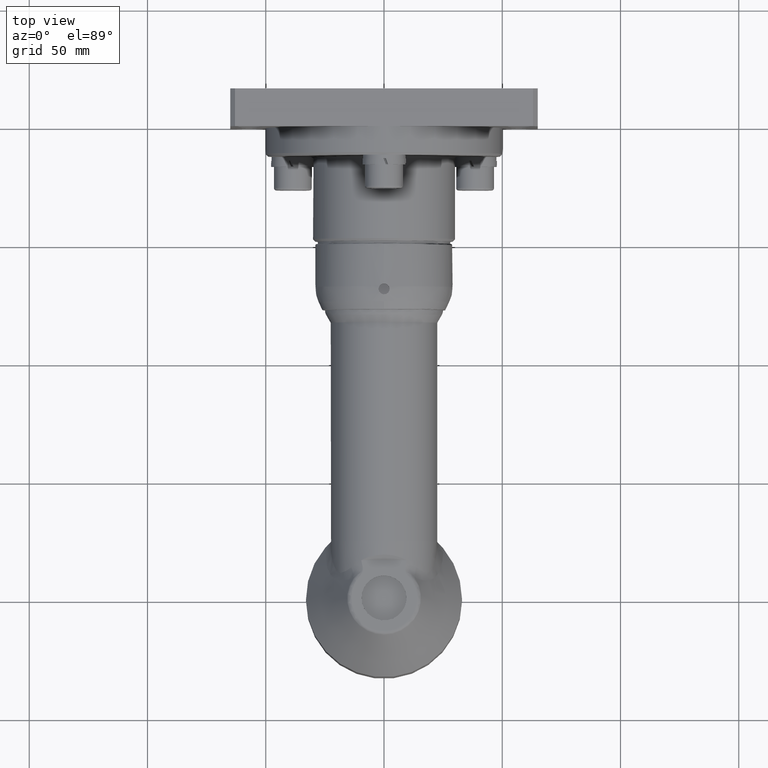
[diagram: clean part render]
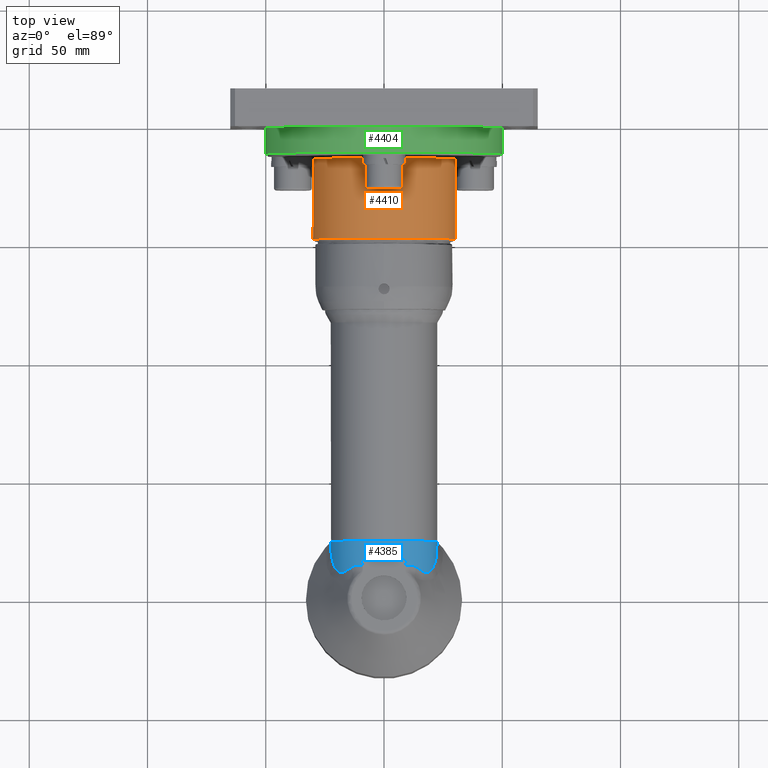
[diagram: same view with three faces highlighted in distinct colors, each labeled with its STEP entity id]
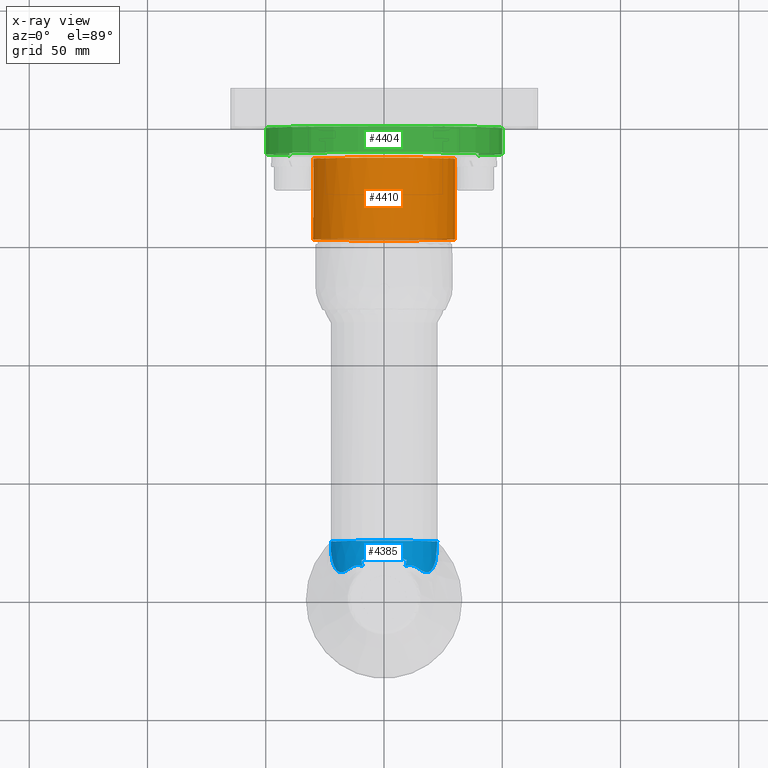
[diagram: x-ray of the same camera — body ghosted, the three highlighted faces saturated]
A machine part, top view with three faces highlighted in distinct colors.
The next image is the same camera in x-ray (body ghosted, the three faces saturated) — at least one of them is partly hidden behind the body in this view.
Their STEP definitions:

[orange] entity #4410 — the highlighted cylindrical surface (bore or boss wall) has radius 30 mm, axis along (-0, 1, -0).
#221=LINE('',#8196,#440);
#440=VECTOR('',#5733,30.);
#630=CYLINDRICAL_SURFACE('',#4825,30.);
#819=FACE_OUTER_BOUND('',#1087,.T.);
#1087=EDGE_LOOP('',(#3302,#3303,#3304,#3305,#3306,#3307,#3308));
#1298=CIRCLE('',#4613,30.);
#1299=CIRCLE('',#4614,30.);
#1429=CIRCLE('',#4810,30.);
#1430=CIRCLE('',#4811,30.);
#1442=CIRCLE('',#4826,30.);
#1668=VERTEX_POINT('',#6719);
#1670=VERTEX_POINT('',#6722);
#1671=VERTEX_POINT('',#6724);
#1847=VERTEX_POINT('',#8163);
#1848=VERTEX_POINT('',#8164);
#2138=EDGE_CURVE('',#1668,#1670,#1298,.T.);
#2139=EDGE_CURVE('',#1670,#1671,#1299,.T.);
#2378=EDGE_CURVE('',#1847,#1848,#1429,.T.);
#2379=EDGE_CURVE('',#1848,#1847,#1430,.T.);
#2394=EDGE_CURVE('',#1671,#1668,#1442,.T.);
#2395=EDGE_CURVE('',#1670,#1848,#221,.T.);
#3302=ORIENTED_EDGE('',*,*,#2394,.F.);
#3303=ORIENTED_EDGE('',*,*,#2139,.F.);
#3304=ORIENTED_EDGE('',*,*,#2395,.T.);
#3305=ORIENTED_EDGE('',*,*,#2378,.F.);
#3306=ORIENTED_EDGE('',*,*,#2379,.F.);
#3307=ORIENTED_EDGE('',*,*,#2395,.F.);
#3308=ORIENTED_EDGE('',*,*,#2138,.F.);
#4410=ADVANCED_FACE('',(#819),#630,.T.);
#4613=AXIS2_PLACEMENT_3D('',#6723,#5253,#5254);
#4614=AXIS2_PLACEMENT_3D('',#6725,#5255,#5256);
#4810=AXIS2_PLACEMENT_3D('',#8165,#5696,#5697);
#4811=AXIS2_PLACEMENT_3D('',#8166,#5698,#5699);
#4825=AXIS2_PLACEMENT_3D('',#8194,#5729,#5730);
#4826=AXIS2_PLACEMENT_3D('',#8195,#5731,#5732);
#5253=DIRECTION('center_axis',(-3.26160557569231E-16,1.,-1.88737914186277E-15));
#5254=DIRECTION('ref_axis',(1.,3.26821404607699E-16,3.57169367469784E-16));
#5255=DIRECTION('center_axis',(-3.26160557569231E-16,1.,-1.88737914186277E-15));
#5256=DIRECTION('ref_axis',(1.,3.26821404607699E-16,3.57169367469784E-16));
#5696=DIRECTION('center_axis',(3.26160557569231E-16,-1.,1.88737914186277E-15));
#5697=DIRECTION('ref_axis',(1.,2.20425031414454E-16,1.73472347597681E-16));
#5698=DIRECTION('center_axis',(3.26160557569231E-16,-1.,1.88737914186277E-15));
#5699=DIRECTION('ref_axis',(1.,2.20425031414454E-16,1.73472347597681E-16));
#5729=DIRECTION('center_axis',(-3.26160557569231E-16,1.,-1.88737914186277E-15));
#5730=DIRECTION('ref_axis',(-1.,-2.20425031414454E-16,-1.73472347597681E-16));
#5731=DIRECTION('center_axis',(-3.26160557569231E-16,1.,-1.88737914186277E-15));
#5732=DIRECTION('ref_axis',(1.,3.26821404607699E-16,3.57169367469784E-16));
#5733=DIRECTION('',(3.26160557569231E-16,-1.,1.88737914186277E-15));
#6719=CARTESIAN_POINT('',(-2.11628509664528E-14,185.999999999999,29.9999999999996));
#6722=CARTESIAN_POINT('',(30.,185.999999999999,-3.49522290355986E-13));
#6723=CARTESIAN_POINT('Origin',(-1.96326209359644E-14,185.999999999999,
-3.51052520386475E-13));
#6724=CARTESIAN_POINT('',(-1.77591195819094E-14,185.999999999999,-30.0000000000004));
#6725=CARTESIAN_POINT('Origin',(-1.96326209359644E-14,185.999999999999,
-3.51052520386475E-13));
#8163=CARTESIAN_POINT('',(-30.,151.999999999999,-2.95759740388513E-13));
#8164=CARTESIAN_POINT('',(30.,151.999999999999,-2.85351399532652E-13));
#8165=CARTESIAN_POINT('Origin',(-8.54316197861053E-15,151.999999999999,
-2.8688162956314E-13));
#8166=CARTESIAN_POINT('Origin',(-8.54316197861053E-15,151.999999999999,
-2.8688162956314E-13));
#8194=CARTESIAN_POINT('Origin',(-1.40878914572875E-14,168.999999999999,
-3.18967074974807E-13));
#8195=CARTESIAN_POINT('Origin',(-1.96326209359644E-14,185.999999999999,
-3.51052520386475E-13));
#8196=CARTESIAN_POINT('',(30.,168.999999999999,-3.17436844944319E-13));

[blue] entity #4385 — the highlighted face is a freeform B-spline surface patch.
#34=(
BOUNDED_SURFACE()
B_SPLINE_SURFACE(2,2,((#7786,#7787,#7788,#7789,#7790,#7791,#7792),(#7793,
#7794,#7795,#7796,#7797,#7798,#7799),(#7800,#7801,#7802,#7803,#7804,#7805,
#7806)),.UNSPECIFIED.,.F.,.F.,.F.)
B_SPLINE_SURFACE_WITH_KNOTS((3,3),(3,2,2,3),(-0.121507903719322,8.42293330282483E-14),
(-1.67354673146494,-0.557848910488315,0.557848910488315,1.67354673146494),
 .UNSPECIFIED.)
GEOMETRIC_REPRESENTATION_ITEM()
RATIONAL_B_SPLINE_SURFACE(((1.,0.848395778988548,1.,0.848395778988548,1.,
0.848395778988548,1.),(0.998155046254917,0.846830528018791,0.998155046254917,
0.846830528018791,0.998155046254917,0.846830528018791,0.998155046254917),
(1.,0.848395778988548,1.,0.848395778988548,1.,0.848395778988548,1.)))
REPRESENTATION_ITEM('')
SURFACE()
);
#98=B_SPLINE_CURVE_WITH_KNOTS('',3,(#7448,#7449,#7450,#7451),
 .UNSPECIFIED.,.F.,.F.,(4,4),(8.45399824800598,8.6977302003579),
 .UNSPECIFIED.);
#99=B_SPLINE_CURVE_WITH_KNOTS('',3,(#7455,#7456,#7457,#7458),
 .UNSPECIFIED.,.F.,.F.,(4,4),(1.5520568508475,1.79578650565698),
 .UNSPECIFIED.);
#102=B_SPLINE_CURVE_WITH_KNOTS('',3,(#7496,#7497,#7498,#7499,#7500,#7501,
#7502,#7503),.UNSPECIFIED.,.F.,.F.,(4,2,2,4),(5.72492215335399,5.94898760195382,
6.32942034717249,6.70985309239116),.UNSPECIFIED.);
#103=B_SPLINE_CURVE_WITH_KNOTS('',3,(#7504,#7505,#7506,#7507,#7508,#7509,
#7510,#7511),.UNSPECIFIED.,.F.,.F.,(4,2,2,4),(6.70985309239116,7.09028583760984,
7.47071858282851,7.69478403142834),.UNSPECIFIED.);
#110=B_SPLINE_CURVE_WITH_KNOTS('',3,(#7667,#7668,#7669,#7670,#7671),
 .UNSPECIFIED.,.F.,.F.,(4,1,4),(17.7349596598075,18.23788179964,18.5067679808923),
 .UNSPECIFIED.);
#111=B_SPLINE_CURVE_WITH_KNOTS('',3,(#7719,#7720,#7721,#7722,#7723,#7724,
#7725,#7726,#7727),.UNSPECIFIED.,.F.,.F.,(4,1,1,1,1,1,4),(0.,0.503527424554999,
1.510582273665,2.01410969822,2.517637122775,3.02116454733,3.52469197188499),
 .UNSPECIFIED.);
#115=B_SPLINE_CURVE_WITH_KNOTS('',3,(#7809,#7810,#7811,#7812,#7813,#7814,
#7815,#7816,#7817),.UNSPECIFIED.,.F.,.F.,(4,1,1,1,1,1,4),(3.70322134086901E-13,
0.503519479453701,1.00703895890703,1.51055843836036,2.01407791781369,2.51759739726702,
3.52463635617369),.UNSPECIFIED.);
#116=B_SPLINE_CURVE_WITH_KNOTS('',3,(#7818,#7819,#7820,#7821,#7822,#7823),
 .UNSPECIFIED.,.F.,.F.,(4,1,1,4),(11.6132148061005,11.7143579581736,12.0496393855913,
12.3849208130091),.UNSPECIFIED.);
#794=FACE_OUTER_BOUND('',#1054,.T.);
#1054=EDGE_LOOP('',(#3154,#3155,#3156,#3157,#3158,#3159,#3160,#3161,#3162,
#3163));
#1382=CIRCLE('',#4745,22.5);
#1383=CIRCLE('',#4746,22.5);
#1773=VERTEX_POINT('',#7446);
#1774=VERTEX_POINT('',#7447);
#1775=VERTEX_POINT('',#7452);
#1776=VERTEX_POINT('',#7454);
#1783=VERTEX_POINT('',#7495);
#1792=VERTEX_POINT('',#7665);
#1793=VERTEX_POINT('',#7717);
#1796=VERTEX_POINT('',#7807);
#1797=VERTEX_POINT('',#7808);
#1798=VERTEX_POINT('',#7824);
#2278=EDGE_CURVE('',#1773,#1774,#98,.T.);
#2280=EDGE_CURVE('',#1776,#1775,#99,.T.);
#2289=EDGE_CURVE('',#1775,#1783,#102,.T.);
#2290=EDGE_CURVE('',#1783,#1773,#103,.T.);
#2305=EDGE_CURVE('',#1792,#1774,#110,.T.);
#2307=EDGE_CURVE('',#1793,#1792,#111,.T.);
#2311=EDGE_CURVE('',#1796,#1797,#115,.T.);
#2312=EDGE_CURVE('',#1776,#1796,#116,.T.);
#2313=EDGE_CURVE('',#1798,#1793,#1382,.T.);
#2314=EDGE_CURVE('',#1797,#1798,#1383,.T.);
#3154=ORIENTED_EDGE('',*,*,#2311,.F.);
#3155=ORIENTED_EDGE('',*,*,#2312,.F.);
#3156=ORIENTED_EDGE('',*,*,#2280,.T.);
#3157=ORIENTED_EDGE('',*,*,#2289,.T.);
#3158=ORIENTED_EDGE('',*,*,#2290,.T.);
#3159=ORIENTED_EDGE('',*,*,#2278,.T.);
#3160=ORIENTED_EDGE('',*,*,#2305,.F.);
#3161=ORIENTED_EDGE('',*,*,#2307,.F.);
#3162=ORIENTED_EDGE('',*,*,#2313,.F.);
#3163=ORIENTED_EDGE('',*,*,#2314,.F.);
#4385=ADVANCED_FACE('',(#794),#34,.F.);
#4745=AXIS2_PLACEMENT_3D('',#7825,#5554,#5555);
#4746=AXIS2_PLACEMENT_3D('',#7826,#5556,#5557);
#5554=DIRECTION('center_axis',(5.4632067194463E-16,1.,-1.08559870364431E-30));
#5555=DIRECTION('ref_axis',(1.,-5.4632067194463E-16,2.39031970244941E-15));
#5556=DIRECTION('center_axis',(5.4632067194463E-16,1.,-1.08559870364431E-30));
#5557=DIRECTION('ref_axis',(1.,-5.4632067194463E-16,2.39031970244941E-15));
#7446=CARTESIAN_POINT('',(9.6243516360872,16.,20.));
#7447=CARTESIAN_POINT('',(9.09498390080596,13.4198637412832,20.));
#7448=CARTESIAN_POINT('Ctrl Pts',(9.62435163608718,16.,20.));
#7449=CARTESIAN_POINT('Ctrl Pts',(9.47337418851441,15.1269371126269,20.));
#7450=CARTESIAN_POINT('Ctrl Pts',(9.29653345409303,14.262978332378,20.));
#7451=CARTESIAN_POINT('Ctrl Pts',(9.09498390080595,13.4198637412832,20.));
#7452=CARTESIAN_POINT('',(-9.62435163608727,16.,20.));
#7454=CARTESIAN_POINT('',(-9.09498390080603,13.4198637412832,20.));
#7455=CARTESIAN_POINT('Ctrl Pts',(-9.09498390080604,13.4198637412832,20.));
#7456=CARTESIAN_POINT('Ctrl Pts',(-9.29652936727274,14.2629612365431,20.));
#7457=CARTESIAN_POINT('Ctrl Pts',(-9.47337063605191,15.1269165696697,20.));
#7458=CARTESIAN_POINT('Ctrl Pts',(-9.62435163608726,16.,20.));
#7495=CARTESIAN_POINT('',(-4.34247441068784E-14,18.3456732678406,22.3456732678406));
#7496=CARTESIAN_POINT('Ctrl Pts',(-9.62435163608727,16.,20.));
#7497=CARTESIAN_POINT('Ctrl Pts',(-8.98716385656482,16.3344583232413,20.3344583232413));
#7498=CARTESIAN_POINT('Ctrl Pts',(-8.33247985892943,16.6332275047113,20.6332275047113));
#7499=CARTESIAN_POINT('Ctrl Pts',(-6.57419305313003,17.3291543132011,21.3291543132011));
#7500=CARTESIAN_POINT('Ctrl Pts',(-5.29647616339163,17.7147374521024,21.7147374521024));
#7501=CARTESIAN_POINT('Ctrl Pts',(-2.64362329555261,18.2234901665909,22.2234901665909));
#7502=CARTESIAN_POINT('Ctrl Pts',(-1.26810915072896,18.3456732678406,22.3456732678406));
#7503=CARTESIAN_POINT('Ctrl Pts',(-4.52415882534751E-14,18.3456732678406,
22.3456732678406));
#7504=CARTESIAN_POINT('Ctrl Pts',(-4.63518112781003E-14,18.3456732678406,
22.3456732678406));
#7505=CARTESIAN_POINT('Ctrl Pts',(1.26810915072887,18.3456732678406,22.3456732678406));
#7506=CARTESIAN_POINT('Ctrl Pts',(2.64362329555252,18.2234901665909,22.2234901665909));
#7507=CARTESIAN_POINT('Ctrl Pts',(5.29647616339154,17.7147374521024,21.7147374521024));
#7508=CARTESIAN_POINT('Ctrl Pts',(6.57419305312994,17.3291543132011,21.3291543132012));
#7509=CARTESIAN_POINT('Ctrl Pts',(8.33247985892934,16.6332275047113,20.6332275047113));
#7510=CARTESIAN_POINT('Ctrl Pts',(8.98716385656473,16.3344583232413,20.3344583232413));
#7511=CARTESIAN_POINT('Ctrl Pts',(9.62435163608719,16.,20.));
#7665=CARTESIAN_POINT('',(13.761764028521,13.033890777737,17.0770377768043));
#7667=CARTESIAN_POINT('Ctrl Pts',(13.7617640285211,13.033890777737,17.0770377768043));
#7668=CARTESIAN_POINT('Ctrl Pts',(12.9123731611278,13.6196306020085,17.8386812360087));
#7669=CARTESIAN_POINT('Ctrl Pts',(11.3759025408911,14.1142740266372,18.9513647595647));
#7670=CARTESIAN_POINT('Ctrl Pts',(9.66284174885424,13.72145825923,19.7740786530177));
#7671=CARTESIAN_POINT('Ctrl Pts',(9.09452026055227,13.4213515638008,20.000370353335));
#7717=CARTESIAN_POINT('',(22.3813309469477,24.1402154091545,-2.30781824310387));
#7719=CARTESIAN_POINT('Ctrl Pts',(22.3813309469481,24.1402154091558,-2.30781824310002));
#7720=CARTESIAN_POINT('Ctrl Pts',(22.4658925624182,22.97367750829,-1.48773567944869));
#7721=CARTESIAN_POINT('Ctrl Pts',(22.5295497562245,19.521470018025,1.0183790027944));
#7722=CARTESIAN_POINT('Ctrl Pts',(21.8398178608806,15.13768485662,4.5599168963291));
#7723=CARTESIAN_POINT('Ctrl Pts',(20.1947444274229,11.8673152734518,8.475916113));
#7724=CARTESIAN_POINT('Ctrl Pts',(18.3988545574265,10.6984464442461,11.646849534274));
#7725=CARTESIAN_POINT('Ctrl Pts',(16.2128775229648,11.3539573254898,14.6446392362247));
#7726=CARTESIAN_POINT('Ctrl Pts',(14.6121771681,12.4474459947066,16.3144776525475));
#7727=CARTESIAN_POINT('Ctrl Pts',(13.761764028521,13.033890777737,17.0770377768043));
#7786=CARTESIAN_POINT('Ctrl Pts',(-21.5829262292009,10.9451855597719,-2.22549190703975));
#7787=CARTESIAN_POINT('Ctrl Pts',(-22.9715373878855,10.945185559772,11.2413250713241));
#7788=CARTESIAN_POINT('Ctrl Pts',(-11.4857686939414,10.9451855597719,18.4079503571882));
#7789=CARTESIAN_POINT('Ctrl Pts',(2.74284551298086E-12,10.9451855597719,
25.5745756430522));
#7790=CARTESIAN_POINT('Ctrl Pts',(11.4857686939453,10.9451855597719,18.4079503571857));
#7791=CARTESIAN_POINT('Ctrl Pts',(22.9715373878879,10.9451855597719,11.2413250713192));
#7792=CARTESIAN_POINT('Ctrl Pts',(21.5829262292004,10.9451855597719,-2.22549190704437));
#7793=CARTESIAN_POINT('Ctrl Pts',(-22.3813309469487,17.5182887276781,-2.30781824309913));
#7794=CARTESIAN_POINT('Ctrl Pts',(-23.8213101957818,17.5182887276781,11.6571689135988));
#7795=CARTESIAN_POINT('Ctrl Pts',(-11.9106550978895,17.5182887276781,19.0889050272441));
#7796=CARTESIAN_POINT('Ctrl Pts',(2.84768109498916E-12,17.5182887276781,
26.5206411408894));
#7797=CARTESIAN_POINT('Ctrl Pts',(11.9106550978936,17.5182887276781,19.0889050272415));
#7798=CARTESIAN_POINT('Ctrl Pts',(23.8213101957843,17.518288727678,11.6571689135937));
#7799=CARTESIAN_POINT('Ctrl Pts',(22.3813309469482,17.518288727678,-2.30781824310392));
#7800=CARTESIAN_POINT('Ctrl Pts',(-22.3813309469481,24.1402154091558,-2.30781824309907));
#7801=CARTESIAN_POINT('Ctrl Pts',(-23.8213101957812,24.1402154091558,11.6571689135985));
#7802=CARTESIAN_POINT('Ctrl Pts',(-11.9106550978892,24.1402154091558,19.0889050272436));
#7803=CARTESIAN_POINT('Ctrl Pts',(2.85129879042328E-12,24.1402154091558,
26.5206411408887));
#7804=CARTESIAN_POINT('Ctrl Pts',(11.9106550978933,24.1402154091558,19.0889050272411));
#7805=CARTESIAN_POINT('Ctrl Pts',(23.8213101957837,24.1402154091558,11.6571689135934));
#7806=CARTESIAN_POINT('Ctrl Pts',(22.3813309469477,24.1402154091558,-2.30781824310387));
#7807=CARTESIAN_POINT('',(-13.7617640285186,13.0338907777388,17.0770377768065));
#7808=CARTESIAN_POINT('',(-22.3813309469481,24.1402154091505,-2.30781824309907));
#7809=CARTESIAN_POINT('Ctrl Pts',(-13.7617640285205,13.0338907777375,17.0770377768048));
#7810=CARTESIAN_POINT('Ctrl Pts',(-14.6121637495278,12.4474552481521,16.314489684897));
#7811=CARTESIAN_POINT('Ctrl Pts',(-16.212727790252,11.3553250866512,14.6446524948929));
#7812=CARTESIAN_POINT('Ctrl Pts',(-18.3979525557912,10.7000685785311,11.6482702756376));
#7813=CARTESIAN_POINT('Ctrl Pts',(-20.1953759323486,11.8686807673516,8.47456280029998));
#7814=CARTESIAN_POINT('Ctrl Pts',(-21.4298766571592,14.3102884881232,5.53782570152025));
#7815=CARTESIAN_POINT('Ctrl Pts',(-22.4336826241751,18.3496908029754,1.87657569844001));
#7816=CARTESIAN_POINT('Ctrl Pts',(-22.5504515093121,21.8071764207595,-0.667678995774713));
#7817=CARTESIAN_POINT('Ctrl Pts',(-22.3813309469481,24.1402154091543,-2.30781824309907));
#7818=CARTESIAN_POINT('Ctrl Pts',(-9.09303455148356,13.4176146243277,20.0001503332669));
#7819=CARTESIAN_POINT('Ctrl Pts',(-9.3090743588148,13.5305036915085,19.9144641509382));
#7820=CARTESIAN_POINT('Ctrl Pts',(-10.2625445996382,13.9208637965449,19.5073043862091));
#7821=CARTESIAN_POINT('Ctrl Pts',(-11.9258333649397,13.9609101773578,18.5681935447309));
#7822=CARTESIAN_POINT('Ctrl Pts',(-13.1955034487994,13.4243839949241,17.5848000842491));
#7823=CARTESIAN_POINT('Ctrl Pts',(-13.7617640285188,13.0338907777386,17.0770377768064));
#7824=CARTESIAN_POINT('',(22.5,24.1402154091466,5.10267380070302E-14));
#7825=CARTESIAN_POINT('Origin',(1.31542371259879E-14,24.1402154091466,-2.62880046130018E-29));
#7826=CARTESIAN_POINT('Origin',(1.31542371259879E-14,24.1402154091466,-2.62880046130018E-29));

[green] entity #4404 — the highlighted cylindrical surface (partial cylindrical patch) has radius 50 mm, axis along (-0, 1, -0).
#216=LINE('',#8125,#435);
#217=LINE('',#8129,#436);
#435=VECTOR('',#5662,10.);
#436=VECTOR('',#5665,10.);
#628=CYLINDRICAL_SURFACE('',#4793,50.);
#813=FACE_OUTER_BOUND('',#1080,.T.);
#1080=EDGE_LOOP('',(#3262,#3263,#3264,#3265,#3266));
#1416=CIRCLE('',#4794,50.);
#1417=CIRCLE('',#4795,50.);
#1418=CIRCLE('',#4796,50.);
#1831=VERTEX_POINT('',#8123);
#1832=VERTEX_POINT('',#8124);
#1833=VERTEX_POINT('',#8126);
#1834=VERTEX_POINT('',#8128);
#1835=VERTEX_POINT('',#8130);
#2361=EDGE_CURVE('',#1831,#1832,#216,.T.);
#2362=EDGE_CURVE('',#1833,#1832,#1416,.T.);
#2363=EDGE_CURVE('',#1833,#1834,#217,.T.);
#2364=EDGE_CURVE('',#1835,#1834,#1417,.T.);
#2365=EDGE_CURVE('',#1831,#1835,#1418,.T.);
#3262=ORIENTED_EDGE('',*,*,#2361,.T.);
#3263=ORIENTED_EDGE('',*,*,#2362,.F.);
#3264=ORIENTED_EDGE('',*,*,#2363,.T.);
#3265=ORIENTED_EDGE('',*,*,#2364,.F.);
#3266=ORIENTED_EDGE('',*,*,#2365,.F.);
#4404=ADVANCED_FACE('',(#813),#628,.T.);
#4793=AXIS2_PLACEMENT_3D('',#8122,#5660,#5661);
#4794=AXIS2_PLACEMENT_3D('',#8127,#5663,#5664);
#4795=AXIS2_PLACEMENT_3D('',#8131,#5666,#5667);
#4796=AXIS2_PLACEMENT_3D('',#8132,#5668,#5669);
#5660=DIRECTION('center_axis',(-3.26160557569231E-16,1.,-1.88737914186277E-15));
#5661=DIRECTION('ref_axis',(-2.34704687555049E-16,1.99311466801755E-15,
1.));
#5662=DIRECTION('',(3.26160557569231E-16,-1.,1.88737914186277E-15));
#5663=DIRECTION('center_axis',(3.26160557569231E-16,-1.,1.88737914186277E-15));
#5664=DIRECTION('ref_axis',(1.,2.20425031414454E-16,1.73472347597681E-16));
#5665=DIRECTION('',(-3.26160557569231E-16,1.,-1.88737914186277E-15));
#5666=DIRECTION('center_axis',(-3.26160557569231E-16,1.,-1.88737914186277E-15));
#5667=DIRECTION('ref_axis',(1.73472347597682E-16,-1.88737914186277E-15,
-1.));
#5668=DIRECTION('center_axis',(-3.26160557569231E-16,1.,-1.88737914186277E-15));
#5669=DIRECTION('ref_axis',(1.73472347597682E-16,-1.88737914186277E-15,
-1.));
#8122=CARTESIAN_POINT('Origin',(-2.1915744838949E-14,192.999999999999,-3.64264174379514E-13));
#8123=CARTESIAN_POINT('',(-40.,198.999999999999,-30.0000000000004));
#8124=CARTESIAN_POINT('',(-40.,187.999999999999,-30.0000000000004));
#8125=CARTESIAN_POINT('',(-40.,192.999999999999,-30.0000000000004));
#8126=CARTESIAN_POINT('',(40.,187.999999999999,-30.0000000000004));
#8127=CARTESIAN_POINT('Origin',(-2.02849420511028E-14,187.999999999999,
-3.548272786702E-13));
#8128=CARTESIAN_POINT('',(40.,198.999999999999,-30.0000000000004));
#8129=CARTESIAN_POINT('',(40.,192.999999999999,-30.0000000000004));
#8130=CARTESIAN_POINT('',(-1.49909239873631E-14,198.999999999999,49.9999999999996));
#8131=CARTESIAN_POINT('Origin',(-2.38727081843644E-14,198.999999999999,
-3.75588449230691E-13));
#8132=CARTESIAN_POINT('Origin',(-2.38727081843644E-14,198.999999999999,
-3.75588449230691E-13));